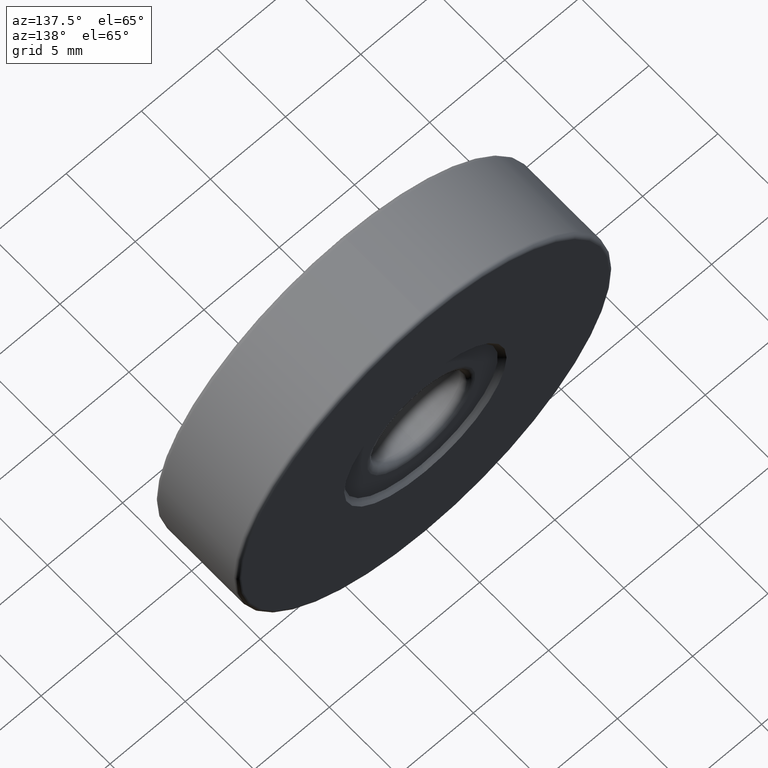
[diagram: clean part render]
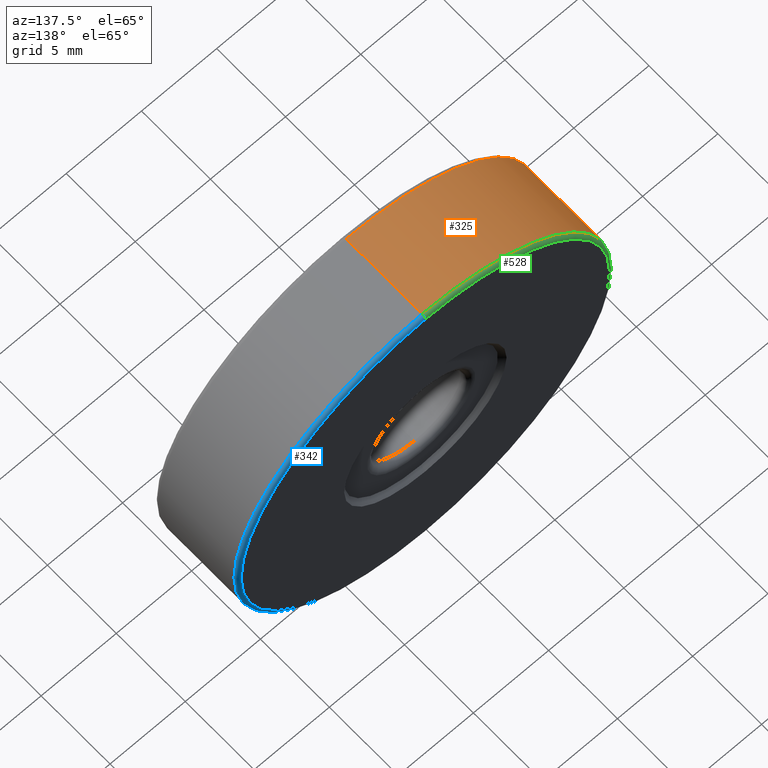
[diagram: same view with three faces highlighted in distinct colors, each labeled with its STEP entity id]
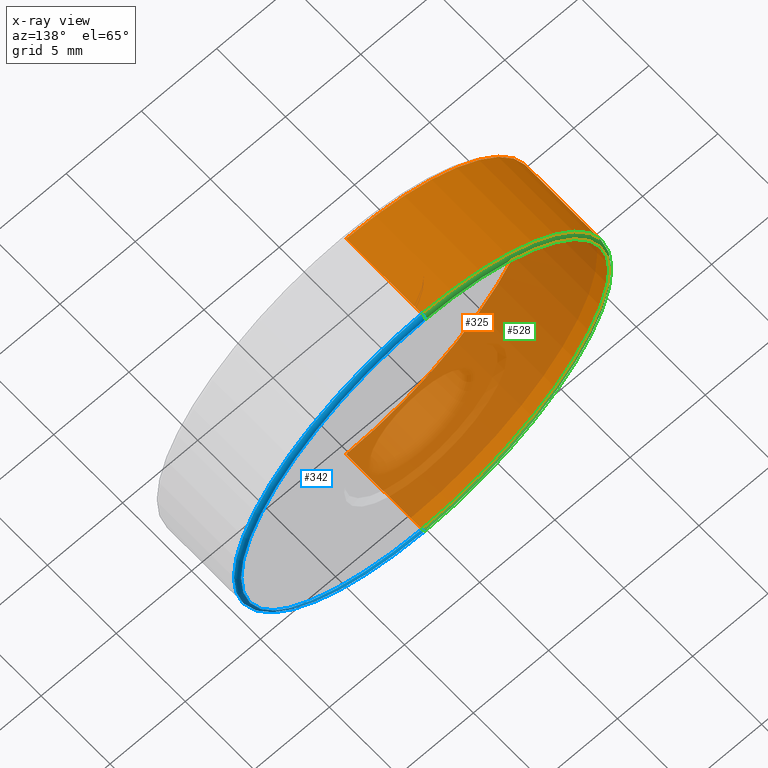
[diagram: x-ray of the same camera — body ghosted, the three highlighted faces saturated]
A machine part, auxiliary view with three faces highlighted in distinct colors.
The next image is the same camera in x-ray (body ghosted, the three faces saturated) — at least one of them is partly hidden behind the body in this view.
Their STEP definitions:

[orange] entity #325 — the highlighted cylindrical surface (partial cylindrical patch) has radius 12.5 mm, axis along (-0, -1, -0).
#12 = VERTEX_POINT ( 'NONE', #186 ) ;
#21 = VERTEX_POINT ( 'NONE', #479 ) ;
#23 = CIRCLE ( 'NONE', #396, 12.50000000000000355 ) ;
#27 = FACE_OUTER_BOUND ( 'NONE', #504, .T. ) ;
#30 = EDGE_CURVE ( 'NONE', #267, #12, #42, .T. ) ;
#33 = ORIENTED_EDGE ( 'NONE', *, *, #92, .T. ) ;
#42 = CIRCLE ( 'NONE', #279, 12.50000000000000355 ) ;
#50 = LINE ( 'NONE', #399, #229 ) ;
#77 = DIRECTION ( 'NONE',  ( 0.0000000000000000000, 0.0000000000000000000, 1.000000000000000000 ) ) ;
#92 = EDGE_CURVE ( 'NONE', #111, #267, #50, .T. ) ;
#111 = VERTEX_POINT ( 'NONE', #393 ) ;
#121 = DIRECTION ( 'NONE',  ( -0.0000000000000000000, -1.000000000000000000, -0.0000000000000000000 ) ) ;
#169 = CYLINDRICAL_SURFACE ( 'NONE', #551, 12.50000000000000000 ) ;
#186 = CARTESIAN_POINT ( 'NONE',  ( -4.682026255059962949, -4.344975976998274980, 37.50000000000000711 ) ) ;
#193 = CARTESIAN_POINT ( 'NONE',  ( -4.682026255059962949, 1.405024023001725242, 37.50000000000000711 ) ) ;
#229 = VECTOR ( 'NONE', #491, 1000.000000000000000 ) ;
#231 = ORIENTED_EDGE ( 'NONE', *, *, #363, .T. ) ;
#233 = ORIENTED_EDGE ( 'NONE', *, *, #448, .F. ) ;
#266 = CARTESIAN_POINT ( 'NONE',  ( -4.682026255059964726, 1.155024023001725020, 25.00000000000000000 ) ) ;
#267 = VERTEX_POINT ( 'NONE', #409 ) ;
#279 = AXIS2_PLACEMENT_3D ( 'NONE', #281, #476, #473 ) ;
#281 = CARTESIAN_POINT ( 'NONE',  ( -4.682026255059964726, -4.344975976998274980, 25.00000000000000000 ) ) ;
#291 = DIRECTION ( 'NONE',  ( -0.0000000000000000000, -1.000000000000000000, -0.0000000000000000000 ) ) ;
#319 = DIRECTION ( 'NONE',  ( -0.0000000000000000000, -1.000000000000000000, -0.0000000000000000000 ) ) ;
#325 = ADVANCED_FACE ( 'NONE', ( #27 ), #169, .T. ) ;
#363 = EDGE_CURVE ( 'NONE', #21, #111, #23, .T. ) ;
#373 = VECTOR ( 'NONE', #291, 1000.000000000000000 ) ;
#393 = CARTESIAN_POINT ( 'NONE',  ( -4.682026255059962949, 1.155024023001725020, 12.50000000000000000 ) ) ;
#396 = AXIS2_PLACEMENT_3D ( 'NONE', #266, #319, #77 ) ;
#399 = CARTESIAN_POINT ( 'NONE',  ( -4.682026255059964726, 1.405024023001725242, 12.50000000000000000 ) ) ;
#409 = CARTESIAN_POINT ( 'NONE',  ( -4.682026255059964726, -4.344975976998274980, 12.50000000000000000 ) ) ;
#448 = EDGE_CURVE ( 'NONE', #21, #12, #576, .T. ) ;
#456 = DIRECTION ( 'NONE',  ( 0.0000000000000000000, 0.0000000000000000000, -1.000000000000000000 ) ) ;
#473 = DIRECTION ( 'NONE',  ( 0.0000000000000000000, 0.0000000000000000000, 1.000000000000000000 ) ) ;
#476 = DIRECTION ( 'NONE',  ( 0.0000000000000000000, 1.000000000000000000, 0.0000000000000000000 ) ) ;
#479 = CARTESIAN_POINT ( 'NONE',  ( -4.682026255059964726, 1.155024023001725020, 37.50000000000000711 ) ) ;
#491 = DIRECTION ( 'NONE',  ( -0.0000000000000000000, -1.000000000000000000, -0.0000000000000000000 ) ) ;
#504 = EDGE_LOOP ( 'NONE', ( #233, #231, #33, #547 ) ) ;
#547 = ORIENTED_EDGE ( 'NONE', *, *, #30, .T. ) ;
#551 = AXIS2_PLACEMENT_3D ( 'NONE', #556, #121, #456 ) ;
#556 = CARTESIAN_POINT ( 'NONE',  ( -4.682026255059964726, 1.405024023001725242, 25.00000000000000000 ) ) ;
#576 = LINE ( 'NONE', #193, #373 ) ;

[blue] entity #342 — the highlighted toroidal blend (fillet) surface has major radius 12.25 mm and minor (blend) radius 0.25 mm.
#6 = CIRCLE ( 'NONE', #217, 0.2500000000000002220 ) ;
#21 = VERTEX_POINT ( 'NONE', #479 ) ;
#81 = DIRECTION ( 'NONE',  ( 0.0000000000000000000, 0.0000000000000000000, 1.000000000000000000 ) ) ;
#95 = CIRCLE ( 'NONE', #442, 0.2500000000000002220 ) ;
#103 = CARTESIAN_POINT ( 'NONE',  ( -4.682026255059964726, 1.405024023001725242, 37.25000000000000711 ) ) ;
#111 = VERTEX_POINT ( 'NONE', #393 ) ;
#115 = VERTEX_POINT ( 'NONE', #103 ) ;
#127 = DIRECTION ( 'NONE',  ( 0.0000000000000000000, 0.0000000000000000000, -1.000000000000000000 ) ) ;
#128 = DIRECTION ( 'NONE',  ( 0.0000000000000000000, 0.0000000000000000000, 1.000000000000000000 ) ) ;
#131 = CARTESIAN_POINT ( 'NONE',  ( -4.682026255059964726, 1.155024023001725020, 37.25000000000000711 ) ) ;
#140 = CARTESIAN_POINT ( 'NONE',  ( -4.682026255059964726, 1.405024023001725242, 25.00000000000000000 ) ) ;
#204 = CIRCLE ( 'NONE', #562, 12.25000000000000355 ) ;
#213 = FACE_OUTER_BOUND ( 'NONE', #227, .T. ) ;
#214 = ORIENTED_EDGE ( 'NONE', *, *, #295, .F. ) ;
#217 = AXIS2_PLACEMENT_3D ( 'NONE', #398, #314, #127 ) ;
#225 = DIRECTION ( 'NONE',  ( 0.0000000000000000000, 1.000000000000000000, 0.0000000000000000000 ) ) ;
#227 = EDGE_LOOP ( 'NONE', ( #410, #494, #590, #214 ) ) ;
#247 = AXIS2_PLACEMENT_3D ( 'NONE', #472, #225, #128 ) ;
#271 = TOROIDAL_SURFACE ( 'NONE', #247, 12.25000000000000000, 0.2500000000000000000 ) ;
#292 = EDGE_CURVE ( 'NONE', #115, #397, #204, .T. ) ;
#295 = EDGE_CURVE ( 'NONE', #21, #115, #95, .T. ) ;
#314 = DIRECTION ( 'NONE',  ( 1.000000000000000000, -0.0000000000000000000, 1.224646799147353207E-16 ) ) ;
#323 = DIRECTION ( 'NONE',  ( -0.0000000000000000000, -1.000000000000000000, -0.0000000000000000000 ) ) ;
#342 = ADVANCED_FACE ( 'NONE', ( #213 ), #271, .T. ) ;
#385 = EDGE_CURVE ( 'NONE', #111, #21, #605, .T. ) ;
#393 = CARTESIAN_POINT ( 'NONE',  ( -4.682026255059962949, 1.155024023001725020, 12.50000000000000000 ) ) ;
#397 = VERTEX_POINT ( 'NONE', #572 ) ;
#398 = CARTESIAN_POINT ( 'NONE',  ( -4.682026255059962949, 1.155024023001725020, 12.75000000000000178 ) ) ;
#402 = DIRECTION ( 'NONE',  ( 0.0000000000000000000, 0.0000000000000000000, 1.000000000000000000 ) ) ;
#410 = ORIENTED_EDGE ( 'NONE', *, *, #385, .F. ) ;
#412 = DIRECTION ( 'NONE',  ( -1.000000000000000000, 0.0000000000000000000, 0.0000000000000000000 ) ) ;
#442 = AXIS2_PLACEMENT_3D ( 'NONE', #131, #412, #402 ) ;
#450 = DIRECTION ( 'NONE',  ( 0.0000000000000000000, 1.000000000000000000, 0.0000000000000000000 ) ) ;
#472 = CARTESIAN_POINT ( 'NONE',  ( -4.682026255059964726, 1.155024023001725020, 25.00000000000000000 ) ) ;
#479 = CARTESIAN_POINT ( 'NONE',  ( -4.682026255059964726, 1.155024023001725020, 37.50000000000000711 ) ) ;
#494 = ORIENTED_EDGE ( 'NONE', *, *, #583, .T. ) ;
#513 = CARTESIAN_POINT ( 'NONE',  ( -4.682026255059964726, 1.155024023001725020, 25.00000000000000000 ) ) ;
#549 = DIRECTION ( 'NONE',  ( 0.0000000000000000000, 0.0000000000000000000, 1.000000000000000000 ) ) ;
#562 = AXIS2_PLACEMENT_3D ( 'NONE', #140, #450, #549 ) ;
#572 = CARTESIAN_POINT ( 'NONE',  ( -4.682026255059962949, 1.405024023001725242, 12.75000000000000178 ) ) ;
#583 = EDGE_CURVE ( 'NONE', #111, #397, #6, .T. ) ;
#590 = ORIENTED_EDGE ( 'NONE', *, *, #292, .F. ) ;
#595 = AXIS2_PLACEMENT_3D ( 'NONE', #513, #323, #81 ) ;
#605 = CIRCLE ( 'NONE', #595, 12.50000000000000355 ) ;

[green] entity #528 — the highlighted toroidal blend (fillet) surface has major radius 12.25 mm and minor (blend) radius 0.25 mm.
#6 = CIRCLE ( 'NONE', #217, 0.2500000000000002220 ) ;
#21 = VERTEX_POINT ( 'NONE', #479 ) ;
#23 = CIRCLE ( 'NONE', #396, 12.50000000000000355 ) ;
#77 = DIRECTION ( 'NONE',  ( 0.0000000000000000000, 0.0000000000000000000, 1.000000000000000000 ) ) ;
#84 = EDGE_CURVE ( 'NONE', #397, #115, #455, .T. ) ;
#85 = ORIENTED_EDGE ( 'NONE', *, *, #84, .F. ) ;
#95 = CIRCLE ( 'NONE', #442, 0.2500000000000002220 ) ;
#103 = CARTESIAN_POINT ( 'NONE',  ( -4.682026255059964726, 1.405024023001725242, 37.25000000000000711 ) ) ;
#111 = VERTEX_POINT ( 'NONE', #393 ) ;
#115 = VERTEX_POINT ( 'NONE', #103 ) ;
#127 = DIRECTION ( 'NONE',  ( 0.0000000000000000000, 0.0000000000000000000, -1.000000000000000000 ) ) ;
#131 = CARTESIAN_POINT ( 'NONE',  ( -4.682026255059964726, 1.155024023001725020, 37.25000000000000711 ) ) ;
#178 = AXIS2_PLACEMENT_3D ( 'NONE', #581, #250, #586 ) ;
#217 = AXIS2_PLACEMENT_3D ( 'NONE', #398, #314, #127 ) ;
#220 = ORIENTED_EDGE ( 'NONE', *, *, #295, .T. ) ;
#237 = TOROIDAL_SURFACE ( 'NONE', #487, 12.25000000000000000, 0.2500000000000000000 ) ;
#238 = FACE_OUTER_BOUND ( 'NONE', #375, .T. ) ;
#249 = CARTESIAN_POINT ( 'NONE',  ( -4.682026255059964726, 1.155024023001725020, 25.00000000000000000 ) ) ;
#250 = DIRECTION ( 'NONE',  ( 0.0000000000000000000, 1.000000000000000000, 0.0000000000000000000 ) ) ;
#266 = CARTESIAN_POINT ( 'NONE',  ( -4.682026255059964726, 1.155024023001725020, 25.00000000000000000 ) ) ;
#295 = EDGE_CURVE ( 'NONE', #21, #115, #95, .T. ) ;
#314 = DIRECTION ( 'NONE',  ( 1.000000000000000000, -0.0000000000000000000, 1.224646799147353207E-16 ) ) ;
#319 = DIRECTION ( 'NONE',  ( -0.0000000000000000000, -1.000000000000000000, -0.0000000000000000000 ) ) ;
#332 = ORIENTED_EDGE ( 'NONE', *, *, #583, .F. ) ;
#336 = DIRECTION ( 'NONE',  ( 0.0000000000000000000, 0.0000000000000000000, 1.000000000000000000 ) ) ;
#363 = EDGE_CURVE ( 'NONE', #21, #111, #23, .T. ) ;
#375 = EDGE_LOOP ( 'NONE', ( #332, #483, #220, #85 ) ) ;
#393 = CARTESIAN_POINT ( 'NONE',  ( -4.682026255059962949, 1.155024023001725020, 12.50000000000000000 ) ) ;
#396 = AXIS2_PLACEMENT_3D ( 'NONE', #266, #319, #77 ) ;
#397 = VERTEX_POINT ( 'NONE', #572 ) ;
#398 = CARTESIAN_POINT ( 'NONE',  ( -4.682026255059962949, 1.155024023001725020, 12.75000000000000178 ) ) ;
#402 = DIRECTION ( 'NONE',  ( 0.0000000000000000000, 0.0000000000000000000, 1.000000000000000000 ) ) ;
#412 = DIRECTION ( 'NONE',  ( -1.000000000000000000, 0.0000000000000000000, 0.0000000000000000000 ) ) ;
#427 = DIRECTION ( 'NONE',  ( 0.0000000000000000000, 1.000000000000000000, 0.0000000000000000000 ) ) ;
#442 = AXIS2_PLACEMENT_3D ( 'NONE', #131, #412, #402 ) ;
#455 = CIRCLE ( 'NONE', #178, 12.25000000000000355 ) ;
#479 = CARTESIAN_POINT ( 'NONE',  ( -4.682026255059964726, 1.155024023001725020, 37.50000000000000711 ) ) ;
#483 = ORIENTED_EDGE ( 'NONE', *, *, #363, .F. ) ;
#487 = AXIS2_PLACEMENT_3D ( 'NONE', #249, #427, #336 ) ;
#528 = ADVANCED_FACE ( 'NONE', ( #238 ), #237, .T. ) ;
#572 = CARTESIAN_POINT ( 'NONE',  ( -4.682026255059962949, 1.405024023001725242, 12.75000000000000178 ) ) ;
#581 = CARTESIAN_POINT ( 'NONE',  ( -4.682026255059964726, 1.405024023001725242, 25.00000000000000000 ) ) ;
#583 = EDGE_CURVE ( 'NONE', #111, #397, #6, .T. ) ;
#586 = DIRECTION ( 'NONE',  ( 0.0000000000000000000, 0.0000000000000000000, 1.000000000000000000 ) ) ;